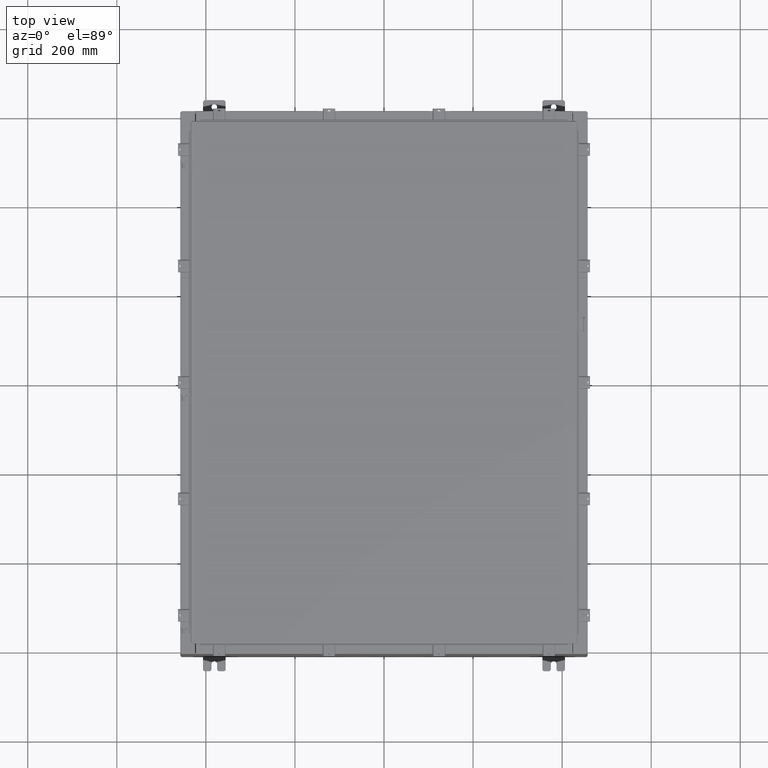
[diagram: clean part render]
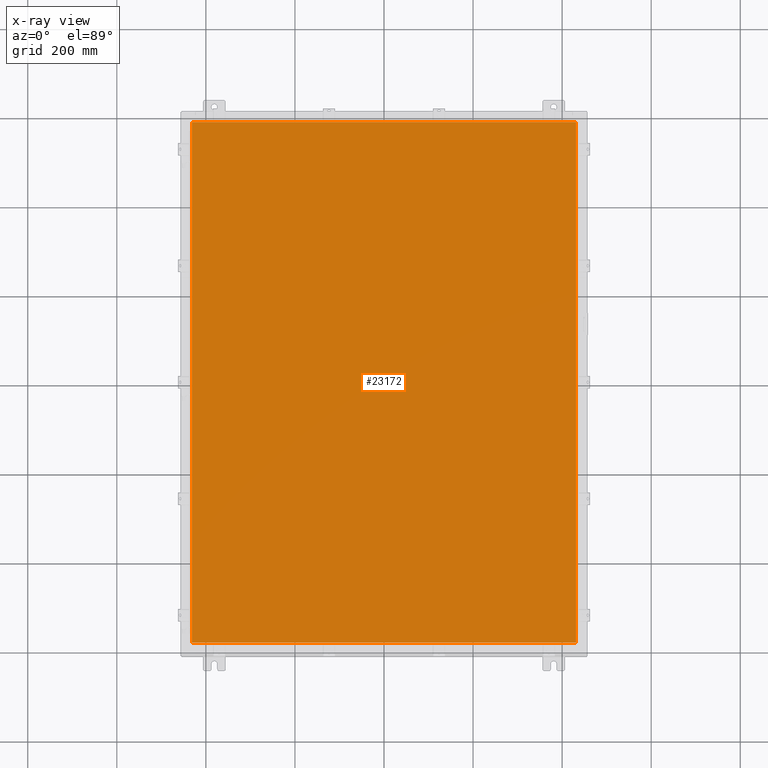
[diagram: x-ray — body ghosted, one internal face saturated and labeled with its STEP entity id]
A machine part, top view, then the same camera in x-ray: the body is ghosted and one INTERNAL B-rep face — a face not visible from any outside direction — is saturated and labeled: STEP entity #23172.
In plain terms, the highlighted planar face has unit normal (0, 0, -1).
Its self-contained STEP definition (entity closure, byte-faithful):
#510 = EDGE_CURVE ( 'NONE', #5877, #24306, #25392, .T. ) ;
#765 = ORIENTED_EDGE ( 'NONE', *, *, #16059, .F. ) ;
#1306 = LINE ( 'NONE', #17980, #18113 ) ;
#1845 = VECTOR ( 'NONE', #2879, 39.37007874015748100 ) ;
#2466 = CARTESIAN_POINT ( 'NONE',  ( -16.99029999999999800, 23.00629999999999600, -0.07470000000000015500 ) ) ;
#2879 = DIRECTION ( 'NONE',  ( 1.000000000000000000, -0.0000000000000000000, -0.0000000000000000000 ) ) ;
#3258 = DIRECTION ( 'NONE',  ( -1.000000000000000000, -0.0000000000000000000, -0.0000000000000000000 ) ) ;
#3290 = DIRECTION ( 'NONE',  ( 0.0000000000000000000, 1.000000000000000000, 0.0000000000000000000 ) ) ;
#5763 = CARTESIAN_POINT ( 'NONE',  ( -16.99029999999999800, 23.00629999999999600, -0.07470000000000015500 ) ) ;
#5877 = VERTEX_POINT ( 'NONE', #2466 ) ;
#7169 = FACE_OUTER_BOUND ( 'NONE', #21830, .T. ) ;
#7450 = VERTEX_POINT ( 'NONE', #17790 ) ;
#7602 = PLANE ( 'NONE',  #19886 ) ;
#8609 = VECTOR ( 'NONE', #12023, 39.37007874015748100 ) ;
#11828 = DIRECTION ( 'NONE',  ( -1.000000000000000000, 0.0000000000000000000, -0.0000000000000000000 ) ) ;
#12023 = DIRECTION ( 'NONE',  ( 0.0000000000000000000, -1.000000000000000000, 0.0000000000000000000 ) ) ;
#12621 = EDGE_CURVE ( 'NONE', #21119, #5877, #1306, .T. ) ;
#13063 = LINE ( 'NONE', #23865, #1845 ) ;
#15438 = LINE ( 'NONE', #20155, #21046 ) ;
#16059 = EDGE_CURVE ( 'NONE', #24306, #7450, #13063, .T. ) ;
#17790 = CARTESIAN_POINT ( 'NONE',  ( 16.99030000000000100, -23.00630000000000000, -0.07470000000000015500 ) ) ;
#17980 = CARTESIAN_POINT ( 'NONE',  ( 16.99029999999999800, 23.00630000000000000, -0.07469999999999797600 ) ) ;
#18113 = VECTOR ( 'NONE', #3258, 39.37007874015748100 ) ;
#19626 = CARTESIAN_POINT ( 'NONE',  ( -16.99029999999999800, -23.00629999999999600, -0.07470000000000015500 ) ) ;
#19886 = AXIS2_PLACEMENT_3D ( 'NONE', #22336, #24443, #11828 ) ;
#20155 = CARTESIAN_POINT ( 'NONE',  ( 16.99030000000000100, -23.00629999999999600, -0.07470000000000015500 ) ) ;
#21046 = VECTOR ( 'NONE', #3290, 39.37007874015748100 ) ;
#21119 = VERTEX_POINT ( 'NONE', #21388 ) ;
#21263 = ORIENTED_EDGE ( 'NONE', *, *, #21931, .F. ) ;
#21388 = CARTESIAN_POINT ( 'NONE',  ( 16.99030000000000100, 23.00629999999999600, -0.07470000000000015500 ) ) ;
#21830 = EDGE_LOOP ( 'NONE', ( #21263, #765, #25111, #26579 ) ) ;
#21931 = EDGE_CURVE ( 'NONE', #7450, #21119, #15438, .T. ) ;
#22336 = CARTESIAN_POINT ( 'NONE',  ( 0.0000000000000000000, 0.0000000000000000000, -0.07470000000000015500 ) ) ;
#23172 = ADVANCED_FACE ( 'NONE', ( #7169 ), #7602, .T. ) ;
#23865 = CARTESIAN_POINT ( 'NONE',  ( -16.99029999999999800, -23.00630000000000000, -0.07469999999999797600 ) ) ;
#24306 = VERTEX_POINT ( 'NONE', #19626 ) ;
#24443 = DIRECTION ( 'NONE',  ( 0.0000000000000000000, 0.0000000000000000000, -1.000000000000000000 ) ) ;
#25111 = ORIENTED_EDGE ( 'NONE', *, *, #510, .F. ) ;
#25392 = LINE ( 'NONE', #5763, #8609 ) ;
#26579 = ORIENTED_EDGE ( 'NONE', *, *, #12621, .F. ) ;